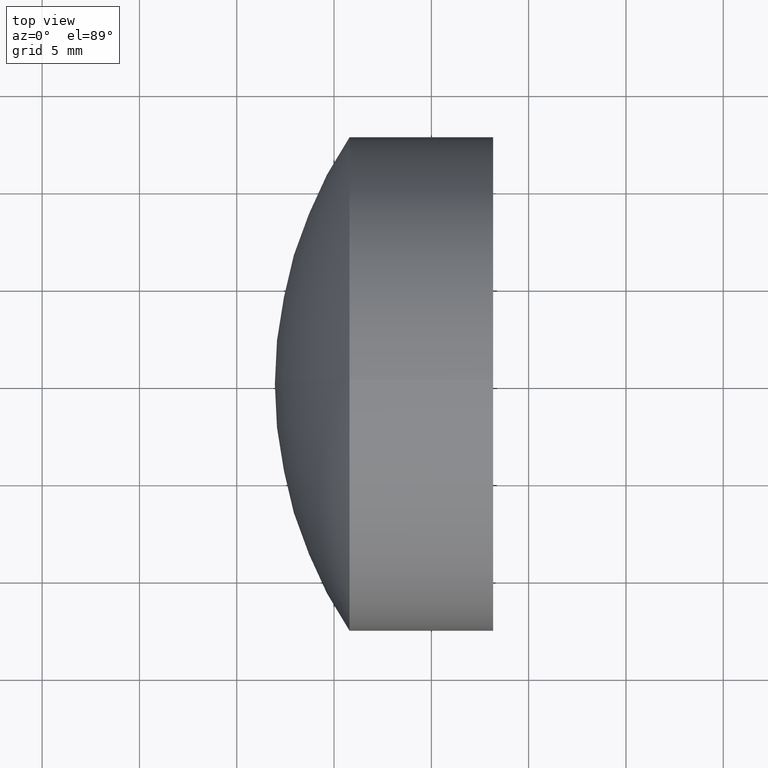
[diagram: clean part render]
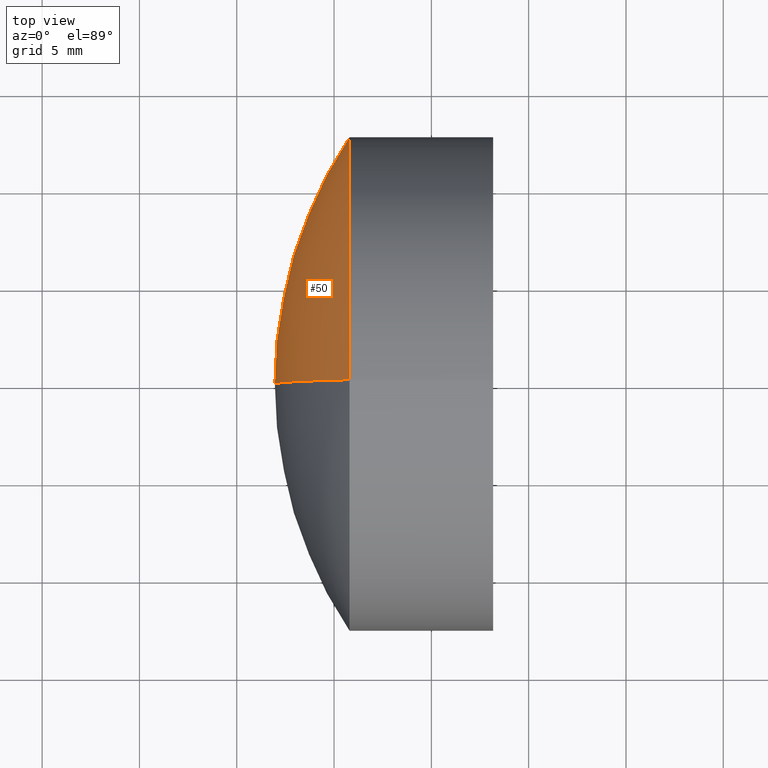
[diagram: same view with one face highlighted and labeled with its STEP entity id]
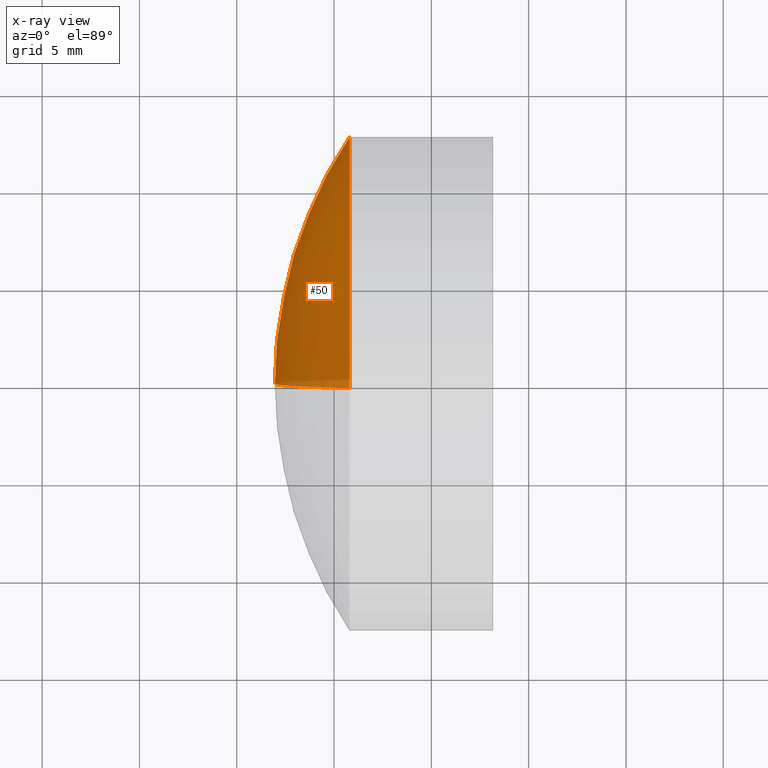
[diagram: x-ray of the same camera — body ghosted, the highlighted face saturated]
A machine part, top view. The second image highlights one B-rep face of the part: STEP entity #50.
The next image is the same camera in x-ray: the body ghosted, the highlighted face saturated — about 3% of this face is hidden behind the body in this view.
In plain terms, the highlighted spherical surface has radius 22.94 mm.
Its self-contained STEP definition (entity closure, byte-faithful):
#7 = VERTEX_POINT ( 'NONE', #99 ) ;
#16 = AXIS2_PLACEMENT_3D ( 'NONE', #311, #140, #153 ) ;
#44 = CARTESIAN_POINT ( 'NONE',  ( 35.79561500476388900, 0.0000000000000000000, 12.69999999999999600 ) ) ;
#47 = CARTESIAN_POINT ( 'NONE',  ( 31.95937379721099000, 0.0000000000000000000, 9.709890096278126700E-016 ) ) ;
#50 = ADVANCED_FACE ( 'NONE', ( #56 ), #307, .T. ) ;
#56 = FACE_OUTER_BOUND ( 'NONE', #189, .T. ) ;
#65 = AXIS2_PLACEMENT_3D ( 'NONE', #314, #298, #235 ) ;
#68 = VERTEX_POINT ( 'NONE', #47 ) ;
#80 = EDGE_CURVE ( 'NONE', #146, #68, #320, .T. ) ;
#89 = ORIENTED_EDGE ( 'NONE', *, *, #142, .T. ) ;
#92 = EDGE_CURVE ( 'NONE', #146, #7, #306, .T. ) ;
#99 = CARTESIAN_POINT ( 'NONE',  ( 35.79561500476388900, 1.555301434917138000E-015, -12.69999999999999600 ) ) ;
#111 = ORIENTED_EDGE ( 'NONE', *, *, #92, .T. ) ;
#136 = AXIS2_PLACEMENT_3D ( 'NONE', #181, #228, #163 ) ;
#140 = DIRECTION ( 'NONE',  ( 0.0000000000000000000, -1.000000000000000000, 0.0000000000000000000 ) ) ;
#142 = EDGE_CURVE ( 'NONE', #7, #68, #211, .T. ) ;
#146 = VERTEX_POINT ( 'NONE', #44 ) ;
#153 = DIRECTION ( 'NONE',  ( 0.0000000000000000000, 0.0000000000000000000, -1.000000000000000000 ) ) ;
#163 = DIRECTION ( 'NONE',  ( 0.0000000000000000000, -1.224646799147353200E-016, 1.000000000000000000 ) ) ;
#181 = CARTESIAN_POINT ( 'NONE',  ( 54.89937379721099800, 0.0000000000000000000, -4.336808689942017700E-016 ) ) ;
#189 = EDGE_LOOP ( 'NONE', ( #111, #89, #242 ) ) ;
#194 = DIRECTION ( 'NONE',  ( 0.0000000000000000000, 0.0000000000000000000, 1.000000000000000000 ) ) ;
#211 = CIRCLE ( 'NONE', #136, 22.94000000000000500 ) ;
#228 = DIRECTION ( 'NONE',  ( -0.0000000000000000000, 1.000000000000000000, 1.224646799147353200E-016 ) ) ;
#235 = DIRECTION ( 'NONE',  ( 0.0000000000000000000, 0.0000000000000000000, 1.000000000000000000 ) ) ;
#240 = AXIS2_PLACEMENT_3D ( 'NONE', #322, #338, #194 ) ;
#242 = ORIENTED_EDGE ( 'NONE', *, *, #80, .F. ) ;
#298 = DIRECTION ( 'NONE',  ( 0.0000000000000000000, 1.000000000000000000, 0.0000000000000000000 ) ) ;
#306 = CIRCLE ( 'NONE', #240, 12.69999999999999900 ) ;
#307 = SPHERICAL_SURFACE ( 'NONE', #65, 22.94000000000000500 ) ;
#311 = CARTESIAN_POINT ( 'NONE',  ( 54.89937379721099800, 0.0000000000000000000, -4.336808689942017700E-016 ) ) ;
#314 = CARTESIAN_POINT ( 'NONE',  ( 54.89937379721099800, 0.0000000000000000000, -4.336808689942017700E-016 ) ) ;
#320 = CIRCLE ( 'NONE', #16, 22.94000000000000500 ) ;
#322 = CARTESIAN_POINT ( 'NONE',  ( 35.79561500476388900, 0.0000000000000000000, 0.0000000000000000000 ) ) ;
#338 = DIRECTION ( 'NONE',  ( -1.000000000000000000, -0.0000000000000000000, -0.0000000000000000000 ) ) ;